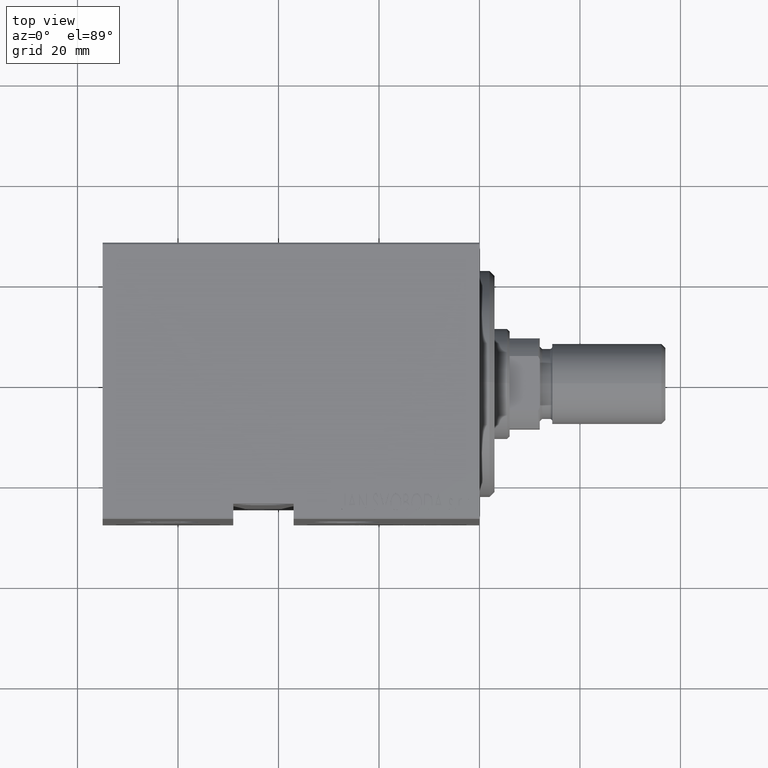
[diagram: clean part render]
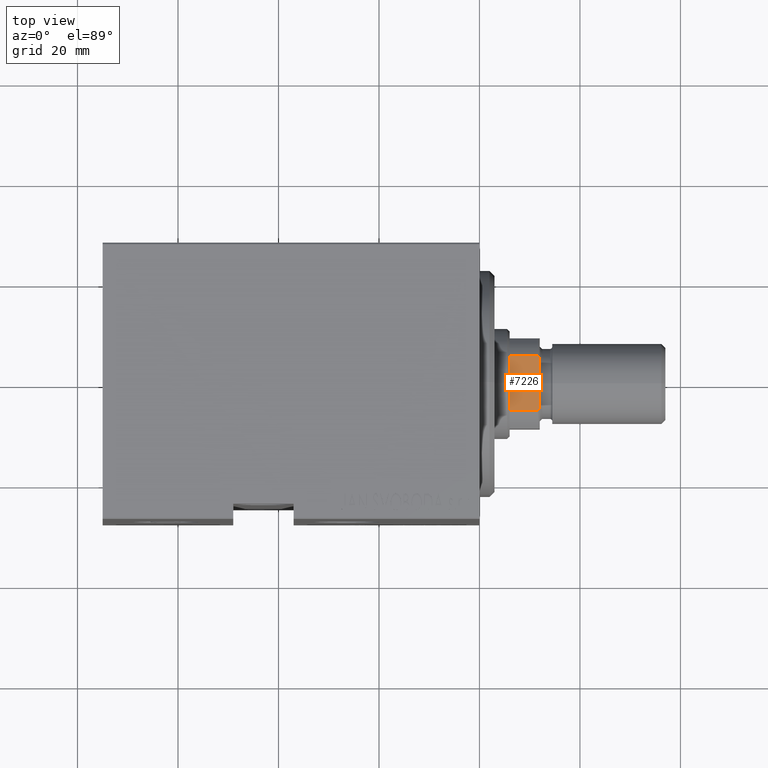
[diagram: same view with one face highlighted and labeled with its STEP entity id]
A machine part, top view. The second image highlights one B-rep face of the part: STEP entity #7226.
In plain terms, the highlighted planar face has unit normal (-0, 0, -1).
Its self-contained STEP definition (entity closure, byte-faithful):
#155 = AXIS2_PLACEMENT_3D ( 'NONE', #19218, #40205, #27605 ) ;
#685 = CARTESIAN_POINT ( 'NONE',  ( -9.000000000000001776, 5.207299490555469035, 76.80354495430067630 ) ) ;
#3411 = DIRECTION ( 'NONE',  ( 1.927470528863119049E-16, -1.000000000000000000, 0.000000000000000000 ) ) ;
#4363 = CARTESIAN_POINT ( 'NONE',  ( -8.999999999999998224, 5.408326913195988794, 76.70000000000000284 ) ) ;
#4399 = CARTESIAN_POINT ( 'NONE',  ( -8.999999999999998224, 5.408326913195986130, 71.00000000000002842 ) ) ;
#6484 = VECTOR ( 'NONE', #37063, 1000.000000000000000 ) ;
#6546 = ORIENTED_EDGE ( 'NONE', *, *, #26130, .T. ) ;
#6894 = LINE ( 'NONE', #20142, #18625 ) ;
#6922 = EDGE_LOOP ( 'NONE', ( #18745, #38553, #24642, #19248, #33222, #6546 ) ) ;
#7226 = ADVANCED_FACE ( 'NONE', ( #38968 ), #9244, .F. ) ;
#7385 = CARTESIAN_POINT ( 'NONE',  ( -8.999999999999998224, -5.004607318780305292, 76.90371420292693472 ) ) ;
#7850 = VERTEX_POINT ( 'NONE', #22331 ) ;
#9244 = PLANE ( 'NONE',  #155 ) ;
#9327 = EDGE_CURVE ( 'NONE', #26323, #28385, #42328, .T. ) ;
#12594 = CARTESIAN_POINT ( 'NONE',  ( -9.000000000000000000, -5.408326913195987018, -0.001000000000001000089 ) ) ;
#13371 = LINE ( 'NONE', #16854, #25584 ) ;
#13567 = B_SPLINE_CURVE_WITH_KNOTS ( 'NONE', 3,
 ( #34114, #26962, #685, #4363 ),
 .UNSPECIFIED., .F., .F.,
 ( 4, 4 ),
 ( 0.000000000000000000, 0.0006782784334759449580 ),
 .UNSPECIFIED. ) ;
#14105 = CARTESIAN_POINT ( 'NONE',  ( -9.000000000000000000, -5.408326913195987018, 76.70000000000001705 ) ) ;
#14761 = CARTESIAN_POINT ( 'NONE',  ( -9.000000000000000000, -5.408326913195987018, 76.70000000000001705 ) ) ;
#16056 = B_SPLINE_CURVE_WITH_KNOTS ( 'NONE', 3,
 ( #14105, #31249, #7385, #33868 ),
 .UNSPECIFIED., .F., .F.,
 ( 4, 4 ),
 ( 0.000000000000000000, 0.0006782784334759247918 ),
 .UNSPECIFIED. ) ;
#16750 = LINE ( 'NONE', #20219, #23309 ) ;
#16854 = CARTESIAN_POINT ( 'NONE',  ( -8.999999999999998224, 5.408326913195988794, -0.001000000000001000089 ) ) ;
#18625 = VECTOR ( 'NONE', #3411, 1000.000000000000000 ) ;
#18745 = ORIENTED_EDGE ( 'NONE', *, *, #9327, .T. ) ;
#19218 = CARTESIAN_POINT ( 'NONE',  ( -9.000000000000001776, 8.999999999999998224, 77.00000000000001421 ) ) ;
#19248 = ORIENTED_EDGE ( 'NONE', *, *, #38261, .T. ) ;
#19485 = CARTESIAN_POINT ( 'NONE',  ( -9.000000000000001776, 4.799999999999986500, 77.00000000000001421 ) ) ;
#20142 = CARTESIAN_POINT ( 'NONE',  ( -9.000000000000001776, 8.999999999999998224, 77.00000000000001421 ) ) ;
#20219 = CARTESIAN_POINT ( 'NONE',  ( -9.000000000000001776, 8.999999999999998224, 71.00000000000001421 ) ) ;
#22331 = CARTESIAN_POINT ( 'NONE',  ( -8.999999999999998224, 5.408326913195988794, 76.70000000000000284 ) ) ;
#22945 = VERTEX_POINT ( 'NONE', #4399 ) ;
#23309 = VECTOR ( 'NONE', #30418, 1000.000000000000000 ) ;
#24642 = ORIENTED_EDGE ( 'NONE', *, *, #38808, .F. ) ;
#24945 = CARTESIAN_POINT ( 'NONE',  ( -9.000000000000000000, -5.408326913195987018, 71.00000000000002842 ) ) ;
#25557 = VERTEX_POINT ( 'NONE', #37025 ) ;
#25584 = VECTOR ( 'NONE', #25757, 1000.000000000000000 ) ;
#25757 = DIRECTION ( 'NONE',  ( -0.000000000000000000, -0.000000000000000000, 1.000000000000000000 ) ) ;
#26130 = EDGE_CURVE ( 'NONE', #22945, #26323, #16750, .T. ) ;
#26323 = VERTEX_POINT ( 'NONE', #24945 ) ;
#26962 = CARTESIAN_POINT ( 'NONE',  ( -9.000000000000001776, 5.004607318780292857, 76.90371420292692051 ) ) ;
#27605 = DIRECTION ( 'NONE',  ( -1.927470528863119049E-16, 1.000000000000000000, 0.000000000000000000 ) ) ;
#28385 = VERTEX_POINT ( 'NONE', #14761 ) ;
#30418 = DIRECTION ( 'NONE',  ( 1.927470528863119049E-16, -1.000000000000000000, 0.000000000000000000 ) ) ;
#31249 = CARTESIAN_POINT ( 'NONE',  ( -9.000000000000000000, -5.207299490555472588, 76.80354495430069051 ) ) ;
#31867 = EDGE_CURVE ( 'NONE', #28385, #25557, #16056, .T. ) ;
#33222 = ORIENTED_EDGE ( 'NONE', *, *, #35392, .F. ) ;
#33868 = CARTESIAN_POINT ( 'NONE',  ( -8.999999999999998224, -4.799999999999999822, 77.00000000000001421 ) ) ;
#34114 = CARTESIAN_POINT ( 'NONE',  ( -9.000000000000001776, 4.799999999999986500, 77.00000000000001421 ) ) ;
#35392 = EDGE_CURVE ( 'NONE', #22945, #7850, #13371, .T. ) ;
#37025 = CARTESIAN_POINT ( 'NONE',  ( -8.999999999999998224, -4.799999999999999822, 77.00000000000001421 ) ) ;
#37063 = DIRECTION ( 'NONE',  ( -0.000000000000000000, -0.000000000000000000, 1.000000000000000000 ) ) ;
#38261 = EDGE_CURVE ( 'NONE', #38620, #7850, #13567, .T. ) ;
#38553 = ORIENTED_EDGE ( 'NONE', *, *, #31867, .T. ) ;
#38620 = VERTEX_POINT ( 'NONE', #19485 ) ;
#38808 = EDGE_CURVE ( 'NONE', #38620, #25557, #6894, .T. ) ;
#38968 = FACE_OUTER_BOUND ( 'NONE', #6922, .T. ) ;
#40205 = DIRECTION ( 'NONE',  ( 1.000000000000000000, 1.927470528863119049E-16, -0.000000000000000000 ) ) ;
#42328 = LINE ( 'NONE', #12594, #6484 ) ;